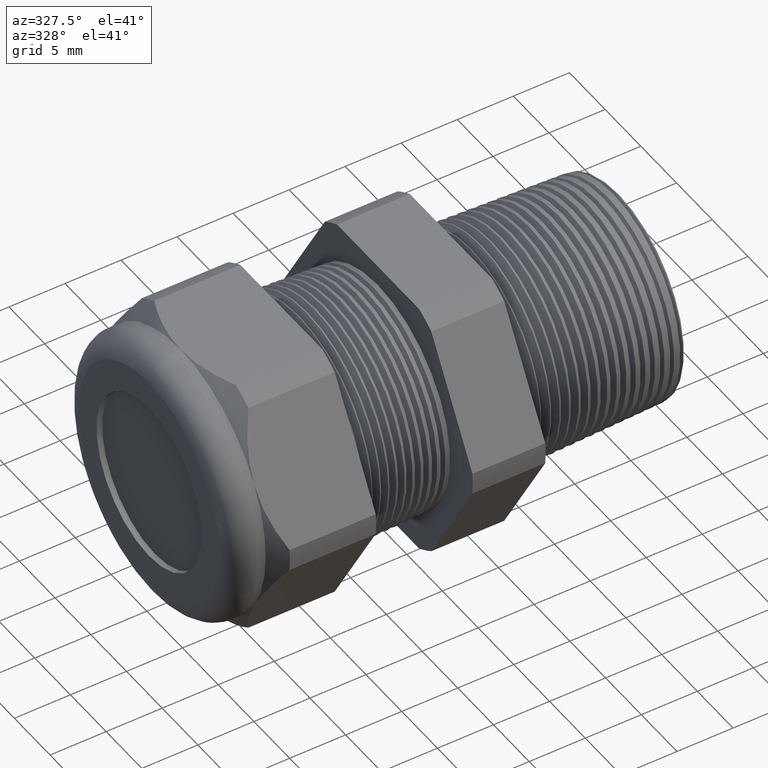
[diagram: clean part render]
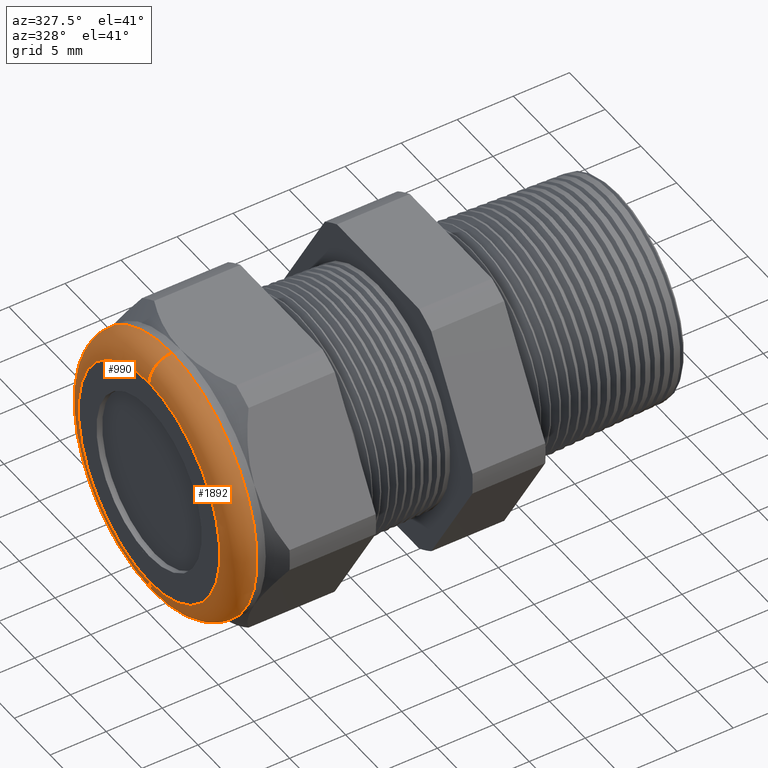
[diagram: same view with one multi-face feature highlighted, each face labeled with its STEP entity id]
A machine part, auxiliary view. The highlighted faces form ONE feature: a constant-radius fillet chain: 2 tangent blend faces with common blend radius 2.032 mm. The faces share edges in the B-rep.
Their STEP definitions:
[1] entity #1892 (Torus):
#994 = VERTEX_POINT ( 'NONE', #3778 ) ;
#995 = VERTEX_POINT ( 'NONE', #3777 ) ;
#1051 = EDGE_CURVE ( 'NONE', #994, #1052, #3860, .T. ) ;
#1052 = VERTEX_POINT ( 'NONE', #3855 ) ;
#1055 = VERTEX_POINT ( 'NONE', #3913 ) ;
#1057 = EDGE_CURVE ( 'NONE', #995, #1055, #3912, .T. ) ;
#1668 = EDGE_CURVE ( 'NONE', #1052, #1055, #5107, .T. ) ;
#1682 = EDGE_CURVE ( 'NONE', #995, #994, #5148, .T. ) ;
#1872 = ORIENTED_EDGE ( 'NONE', *, *, #1668, .F. ) ;
#1892 = ADVANCED_FACE ( 'NONE', ( #5423 ), #5422, .T. ) ;
#1893 = EDGE_LOOP ( 'NONE', ( #1894, #1895, #1896, #1872 ) ) ;
#1894 = ORIENTED_EDGE ( 'NONE', *, *, #1051, .F. ) ;
#1895 = ORIENTED_EDGE ( 'NONE', *, *, #1682, .F. ) ;
#1896 = ORIENTED_EDGE ( 'NONE', *, *, #1057, .T. ) ;
#3777 = CARTESIAN_POINT ( 'NONE',  ( -1.289999999999999800, 5.755839955992560900E-017, 0.4700000000000000300 ) ) ;
#3778 = CARTESIAN_POINT ( 'NONE',  ( -1.289999999999999800, 0.0000000000000000000, -0.4700000000000000300 ) ) ;
#3855 = CARTESIAN_POINT ( 'NONE',  ( -1.369999999999999900, 5.265981236333620100E-017, -0.3900000000000000700 ) ) ;
#3856 = DIRECTION ( 'NONE',  ( 0.0000000000000000000, -1.224646799147353900E-016, 1.000000000000000000 ) ) ;
#3857 = DIRECTION ( 'NONE',  ( 0.0000000000000000000, 1.000000000000000000, 1.224646799147353200E-016 ) ) ;
#3858 = CARTESIAN_POINT ( 'NONE',  ( -1.289999999999999800, 4.776122516674678000E-017, -0.3900000000000000700 ) ) ;
#3859 = AXIS2_PLACEMENT_3D ( 'NONE', #3858, #3857, #3856 ) ;
#3860 = CIRCLE ( 'NONE', #3859, 0.07999999999999996000 ) ;
#3908 = DIRECTION ( 'NONE',  ( 0.0000000000000000000, 0.0000000000000000000, -1.000000000000000000 ) ) ;
#3909 = DIRECTION ( 'NONE',  ( 0.0000000000000000000, -1.000000000000000000, 0.0000000000000000000 ) ) ;
#3910 = CARTESIAN_POINT ( 'NONE',  ( -1.289999999999999800, 0.0000000000000000000, 0.3900000000000000700 ) ) ;
#3911 = AXIS2_PLACEMENT_3D ( 'NONE', #3910, #3909, #3908 ) ;
#3912 = CIRCLE ( 'NONE', #3911, 0.07999999999999996000 ) ;
#3913 = CARTESIAN_POINT ( 'NONE',  ( -1.369999999999999900, 0.0000000000000000000, 0.3900000000000000700 ) ) ;
#5103 = DIRECTION ( 'NONE',  ( 0.0000000000000000000, 0.0000000000000000000, 1.000000000000000000 ) ) ;
#5104 = DIRECTION ( 'NONE',  ( -1.000000000000000000, 0.0000000000000000000, 0.0000000000000000000 ) ) ;
#5105 = CARTESIAN_POINT ( 'NONE',  ( -1.369999999999999900, 0.0000000000000000000, 0.0000000000000000000 ) ) ;
#5106 = AXIS2_PLACEMENT_3D ( 'NONE', #5105, #5104, #5103 ) ;
#5107 = CIRCLE ( 'NONE', #5106, 0.3900000000000000700 ) ;
#5140 = DIRECTION ( 'NONE',  ( 0.0000000000000000000, 0.0000000000000000000, 1.000000000000000000 ) ) ;
#5141 = DIRECTION ( 'NONE',  ( 1.000000000000000000, 0.0000000000000000000, 0.0000000000000000000 ) ) ;
#5142 = CARTESIAN_POINT ( 'NONE',  ( -1.289999999999999800, 0.0000000000000000000, 0.0000000000000000000 ) ) ;
#5143 = AXIS2_PLACEMENT_3D ( 'NONE', #5142, #5141, #5140 ) ;
#5148 = CIRCLE ( 'NONE', #5143, 0.4700000000000000300 ) ;
#5417 = DIRECTION ( 'NONE',  ( 0.0000000000000000000, 0.0000000000000000000, 1.000000000000000000 ) ) ;
#5418 = DIRECTION ( 'NONE',  ( -1.000000000000000000, 0.0000000000000000000, 0.0000000000000000000 ) ) ;
#5419 = CARTESIAN_POINT ( 'NONE',  ( -1.289999999999999800, 0.0000000000000000000, 0.0000000000000000000 ) ) ;
#5420 = AXIS2_PLACEMENT_3D ( 'NONE', #5419, #5418, #5417 ) ;
#5422 = TOROIDAL_SURFACE ( 'NONE', #5420, 0.3900000000000000700, 0.08000000000000000200 ) ;
#5423 = FACE_OUTER_BOUND ( 'NONE', #1893, .T. ) ;
[2] entity #990 (Torus):
#990 = ADVANCED_FACE ( 'NONE', ( #3725 ), #3788, .T. ) ;
#991 = EDGE_LOOP ( 'NONE', ( #992, #1050, #1053, #1056 ) ) ;
#992 = ORIENTED_EDGE ( 'NONE', *, *, #993, .F. ) ;
#993 = EDGE_CURVE ( 'NONE', #994, #995, #3783, .T. ) ;
#994 = VERTEX_POINT ( 'NONE', #3778 ) ;
#995 = VERTEX_POINT ( 'NONE', #3777 ) ;
#1050 = ORIENTED_EDGE ( 'NONE', *, *, #1051, .T. ) ;
#1051 = EDGE_CURVE ( 'NONE', #994, #1052, #3860, .T. ) ;
#1052 = VERTEX_POINT ( 'NONE', #3855 ) ;
#1053 = ORIENTED_EDGE ( 'NONE', *, *, #1054, .F. ) ;
#1054 = EDGE_CURVE ( 'NONE', #1055, #1052, #3852, .T. ) ;
#1055 = VERTEX_POINT ( 'NONE', #3913 ) ;
#1056 = ORIENTED_EDGE ( 'NONE', *, *, #1057, .F. ) ;
#1057 = EDGE_CURVE ( 'NONE', #995, #1055, #3912, .T. ) ;
#3349 = CARTESIAN_POINT ( 'NONE',  ( -1.369999999999999900, 0.0000000000000000000, 0.0000000000000000000 ) ) ;
#3601 = AXIS2_PLACEMENT_3D ( 'NONE', #3349, #3915, #3914 ) ;
#3725 = FACE_OUTER_BOUND ( 'NONE', #991, .T. ) ;
#3777 = CARTESIAN_POINT ( 'NONE',  ( -1.289999999999999800, 5.755839955992560900E-017, 0.4700000000000000300 ) ) ;
#3778 = CARTESIAN_POINT ( 'NONE',  ( -1.289999999999999800, 0.0000000000000000000, -0.4700000000000000300 ) ) ;
#3779 = DIRECTION ( 'NONE',  ( 0.0000000000000000000, 0.0000000000000000000, 1.000000000000000000 ) ) ;
#3780 = DIRECTION ( 'NONE',  ( 1.000000000000000000, 0.0000000000000000000, 0.0000000000000000000 ) ) ;
#3781 = CARTESIAN_POINT ( 'NONE',  ( -1.289999999999999800, 0.0000000000000000000, 0.0000000000000000000 ) ) ;
#3782 = AXIS2_PLACEMENT_3D ( 'NONE', #3781, #3780, #3779 ) ;
#3783 = CIRCLE ( 'NONE', #3782, 0.4700000000000000300 ) ;
#3784 = DIRECTION ( 'NONE',  ( 0.0000000000000000000, 0.0000000000000000000, 1.000000000000000000 ) ) ;
#3785 = DIRECTION ( 'NONE',  ( -1.000000000000000000, 0.0000000000000000000, 0.0000000000000000000 ) ) ;
#3786 = CARTESIAN_POINT ( 'NONE',  ( -1.289999999999999800, 0.0000000000000000000, 0.0000000000000000000 ) ) ;
#3787 = AXIS2_PLACEMENT_3D ( 'NONE', #3786, #3785, #3784 ) ;
#3788 = TOROIDAL_SURFACE ( 'NONE', #3787, 0.3900000000000000700, 0.08000000000000000200 ) ;
#3852 = CIRCLE ( 'NONE', #3601, 0.3900000000000000700 ) ;
#3855 = CARTESIAN_POINT ( 'NONE',  ( -1.369999999999999900, 5.265981236333620100E-017, -0.3900000000000000700 ) ) ;
#3856 = DIRECTION ( 'NONE',  ( 0.0000000000000000000, -1.224646799147353900E-016, 1.000000000000000000 ) ) ;
#3857 = DIRECTION ( 'NONE',  ( 0.0000000000000000000, 1.000000000000000000, 1.224646799147353200E-016 ) ) ;
#3858 = CARTESIAN_POINT ( 'NONE',  ( -1.289999999999999800, 4.776122516674678000E-017, -0.3900000000000000700 ) ) ;
#3859 = AXIS2_PLACEMENT_3D ( 'NONE', #3858, #3857, #3856 ) ;
#3860 = CIRCLE ( 'NONE', #3859, 0.07999999999999996000 ) ;
#3908 = DIRECTION ( 'NONE',  ( 0.0000000000000000000, 0.0000000000000000000, -1.000000000000000000 ) ) ;
#3909 = DIRECTION ( 'NONE',  ( 0.0000000000000000000, -1.000000000000000000, 0.0000000000000000000 ) ) ;
#3910 = CARTESIAN_POINT ( 'NONE',  ( -1.289999999999999800, 0.0000000000000000000, 0.3900000000000000700 ) ) ;
#3911 = AXIS2_PLACEMENT_3D ( 'NONE', #3910, #3909, #3908 ) ;
#3912 = CIRCLE ( 'NONE', #3911, 0.07999999999999996000 ) ;
#3913 = CARTESIAN_POINT ( 'NONE',  ( -1.369999999999999900, 0.0000000000000000000, 0.3900000000000000700 ) ) ;
#3914 = DIRECTION ( 'NONE',  ( 0.0000000000000000000, 0.0000000000000000000, 1.000000000000000000 ) ) ;
#3915 = DIRECTION ( 'NONE',  ( -1.000000000000000000, 0.0000000000000000000, 0.0000000000000000000 ) ) ;